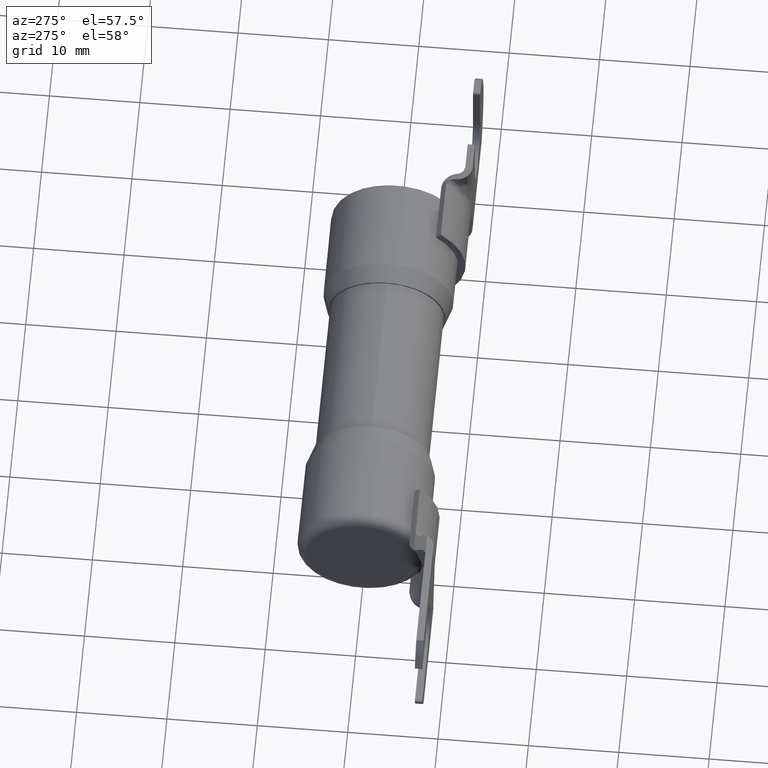
[diagram: clean part render]
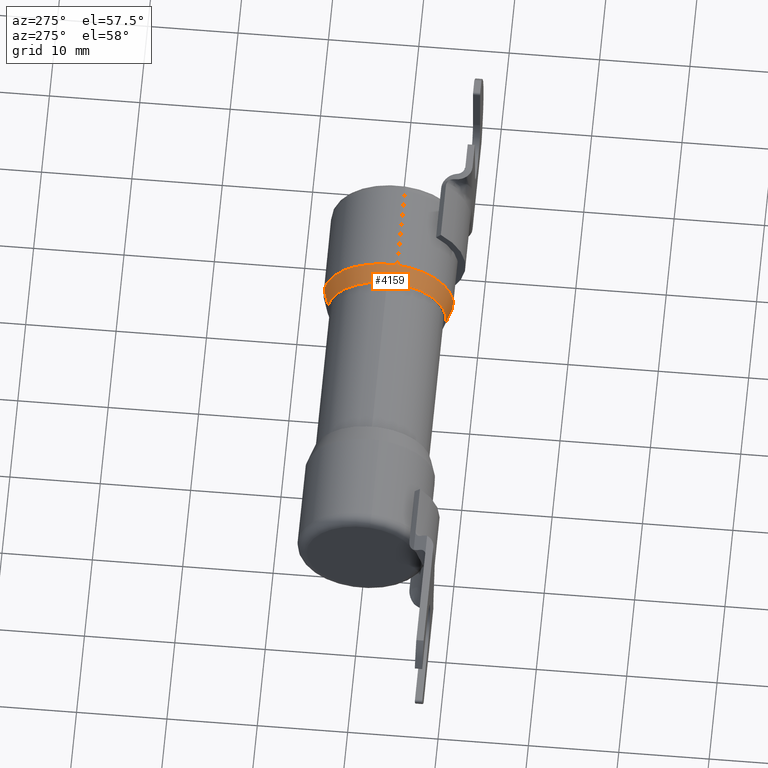
[diagram: same view with one face highlighted and labeled with its STEP entity id]
A machine part, auxiliary view. The second image highlights one B-rep face of the part: STEP entity #4159.
In plain terms, the highlighted conical surface has half-angle 17.027 deg.
Its self-contained STEP definition (entity closure, byte-faithful):
#61 = CONICAL_SURFACE ( 'NONE', #1395, 0.2829999999999995900, 0.2971808304163147100 ) ;
#155 = DIRECTION ( 'NONE',  ( 0.0000000000000000000, 0.9905128029140871600, 0.1374204761426717800 ) ) ;
#307 = ORIENTED_EDGE ( 'NONE', *, *, #3711, .T. ) ;
#312 = DIRECTION ( 'NONE',  ( 1.000000000000000000, 0.0000000000000000000, 0.0000000000000000000 ) ) ;
#315 = CARTESIAN_POINT ( 'NONE',  ( 0.3720000000000010000, -0.03552319308288062100, 0.2560475595532912800 ) ) ;
#461 = EDGE_CURVE ( 'NONE', #700, #1852, #3160, .T. ) ;
#700 = VERTEX_POINT ( 'NONE', #2421 ) ;
#712 = CIRCLE ( 'NONE', #5389, 0.2829999999999995900 ) ;
#755 = ORIENTED_EDGE ( 'NONE', *, *, #461, .T. ) ;
#772 = CARTESIAN_POINT ( 'NONE',  ( 0.4520000000000009600, 0.0000000000000000000, 3.791200677927629700E-033 ) ) ;
#800 = AXIS2_PLACEMENT_3D ( 'NONE', #1536, #4642, #1992 ) ;
#802 = VERTEX_POINT ( 'NONE', #952 ) ;
#888 = CARTESIAN_POINT ( 'NONE',  ( 0.4520000000000009600, 0.0000000000000000000, 3.791200677927629700E-033 ) ) ;
#890 = ORIENTED_EDGE ( 'NONE', *, *, #5008, .T. ) ;
#919 = ORIENTED_EDGE ( 'NONE', *, *, #4325, .F. ) ;
#952 = CARTESIAN_POINT ( 'NONE',  ( 0.3720000000000010000, 0.2560475595532912800, 0.03552319308288058600 ) ) ;
#1040 = VERTEX_POINT ( 'NONE', #315 ) ;
#1343 = DIRECTION ( 'NONE',  ( 0.0000000000000000000, 0.9905128029140871600, 0.1374204761426717800 ) ) ;
#1395 = AXIS2_PLACEMENT_3D ( 'NONE', #772, #312, #3109 ) ;
#1438 = CARTESIAN_POINT ( 'NONE',  ( 0.4520000000000009600, 0.2803151232246862700, 0.03888999474837602500 ) ) ;
#1536 = CARTESIAN_POINT ( 'NONE',  ( 0.3720000000000010000, 0.0000000000000000000, 3.791200677927629700E-033 ) ) ;
#1598 = VERTEX_POINT ( 'NONE', #4808 ) ;
#1697 = VERTEX_POINT ( 'NONE', #4850 ) ;
#1852 = VERTEX_POINT ( 'NONE', #4256 ) ;
#1935 = CIRCLE ( 'NONE', #800, 0.2584999999999997300 ) ;
#1969 = VECTOR ( 'NONE', #4519, 39.37007874015748900 ) ;
#1985 = FACE_OUTER_BOUND ( 'NONE', #4925, .T. ) ;
#1992 = DIRECTION ( 'NONE',  ( 0.0000000000000000000, -0.9905128029140872800, -0.1374204761426717800 ) ) ;
#2093 = CARTESIAN_POINT ( 'NONE',  ( 0.3720000000000010000, 0.0000000000000000000, 3.791200677927629700E-033 ) ) ;
#2421 = CARTESIAN_POINT ( 'NONE',  ( 0.3720000000000010000, -0.2560475595532912800, -0.03552319308288061400 ) ) ;
#2438 = CIRCLE ( 'NONE', #3350, 0.2829999999999995900 ) ;
#2537 = DIRECTION ( 'NONE',  ( 0.0000000000000000000, -0.9905128029140872800, -0.1374204761426717800 ) ) ;
#2598 = ORIENTED_EDGE ( 'NONE', *, *, #5483, .T. ) ;
#2699 = ORIENTED_EDGE ( 'NONE', *, *, #4578, .T. ) ;
#2874 = DIRECTION ( 'NONE',  ( -1.000000000000000000, 0.0000000000000000000, 0.0000000000000000000 ) ) ;
#2962 = LINE ( 'NONE', #1438, #4004 ) ;
#3109 = DIRECTION ( 'NONE',  ( 0.0000000000000000000, -0.9905128029140871600, -0.1374204761426717800 ) ) ;
#3160 = LINE ( 'NONE', #3218, #1969 ) ;
#3218 = CARTESIAN_POINT ( 'NONE',  ( 0.4520000000000009600, -0.2803151232246862700, -0.03888999474837605300 ) ) ;
#3350 = AXIS2_PLACEMENT_3D ( 'NONE', #5489, #2874, #155 ) ;
#3711 = EDGE_CURVE ( 'NONE', #1852, #1598, #712, .T. ) ;
#3993 = CIRCLE ( 'NONE', #5727, 0.2584999999999997300 ) ;
#4004 = VECTOR ( 'NONE', #4999, 39.37007874015748900 ) ;
#4015 = DIRECTION ( 'NONE',  ( -1.000000000000000000, 0.0000000000000000000, 0.0000000000000000000 ) ) ;
#4159 = ADVANCED_FACE ( 'NONE', ( #1985 ), #61, .T. ) ;
#4256 = CARTESIAN_POINT ( 'NONE',  ( 0.4520000000000009600, -0.2803151232246862700, -0.03888999474837605300 ) ) ;
#4325 = EDGE_CURVE ( 'NONE', #802, #1697, #2962, .T. ) ;
#4519 = DIRECTION ( 'NONE',  ( 0.9561658132304404800, -0.2900476844122612500, -0.04024025815592561400 ) ) ;
#4578 = EDGE_CURVE ( 'NONE', #1040, #700, #3993, .T. ) ;
#4642 = DIRECTION ( 'NONE',  ( 1.000000000000000000, 0.0000000000000000000, 0.0000000000000000000 ) ) ;
#4808 = CARTESIAN_POINT ( 'NONE',  ( 0.4520000000000009600, -0.03888999474837606700, 0.2803151232246866000 ) ) ;
#4850 = CARTESIAN_POINT ( 'NONE',  ( 0.4520000000000009600, 0.2803151232246862700, 0.03888999474837602500 ) ) ;
#4925 = EDGE_LOOP ( 'NONE', ( #919, #2598, #2699, #755, #307, #890 ) ) ;
#4999 = DIRECTION ( 'NONE',  ( 0.9561658132304404800, 0.2900476844122612500, 0.04024025815592557900 ) ) ;
#5008 = EDGE_CURVE ( 'NONE', #1598, #1697, #2438, .T. ) ;
#5165 = DIRECTION ( 'NONE',  ( 1.000000000000000000, 0.0000000000000000000, 0.0000000000000000000 ) ) ;
#5389 = AXIS2_PLACEMENT_3D ( 'NONE', #888, #4015, #1343 ) ;
#5483 = EDGE_CURVE ( 'NONE', #802, #1040, #1935, .T. ) ;
#5489 = CARTESIAN_POINT ( 'NONE',  ( 0.4520000000000009600, 0.0000000000000000000, 3.791200677927629700E-033 ) ) ;
#5727 = AXIS2_PLACEMENT_3D ( 'NONE', #2093, #5165, #2537 ) ;